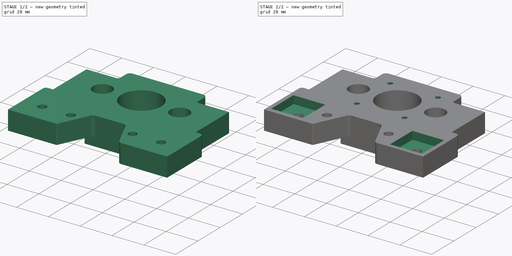
[diagram: build sequence overview — one tinted view per stage of 2, left to right]
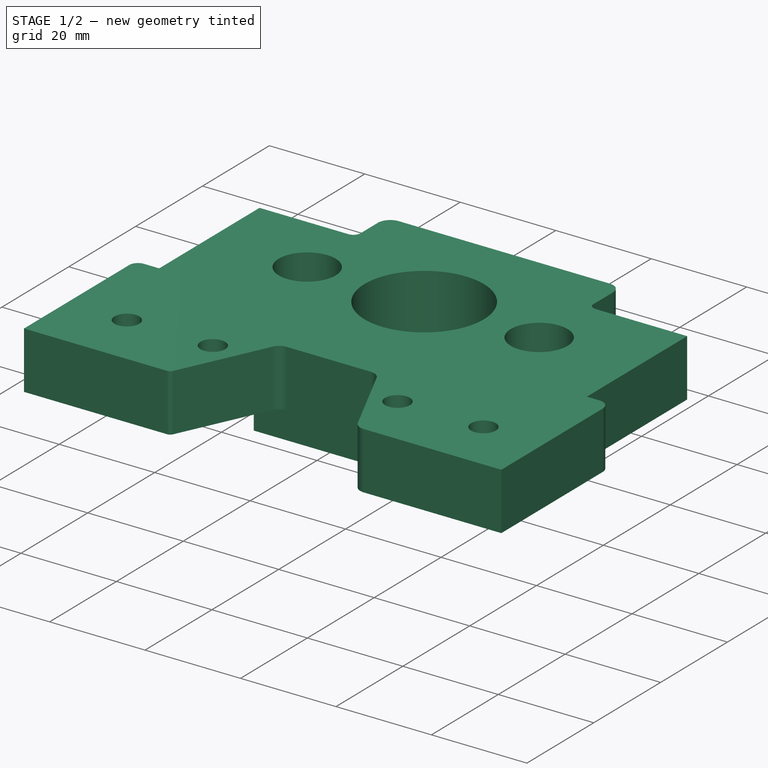
[diagram: stage 1 of 2 — iso view after this stage's code; geometry added in this stage tinted green]
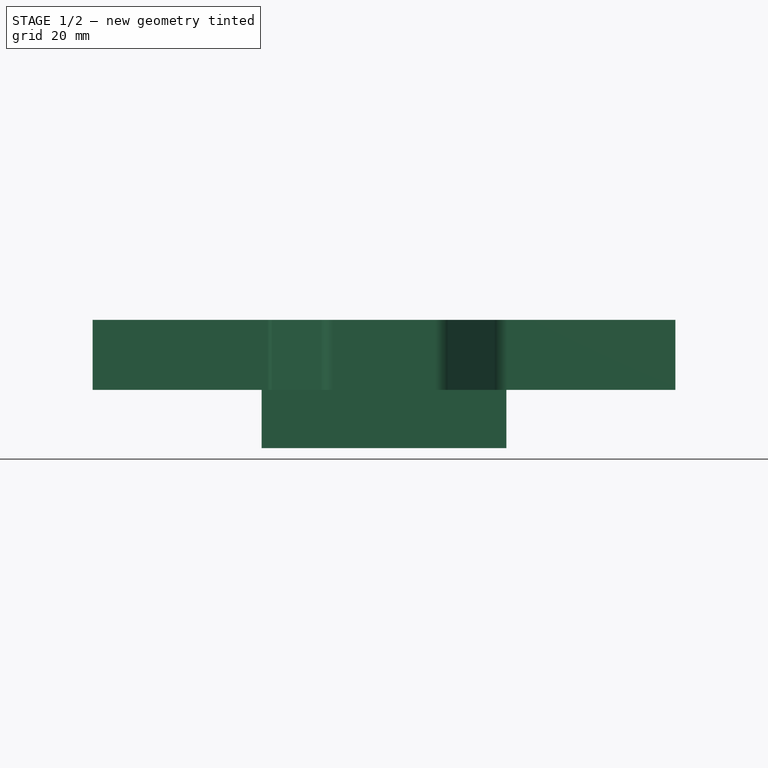
[diagram: stage 1 of 2 — front view after this stage's code; geometry added in this stage tinted green]
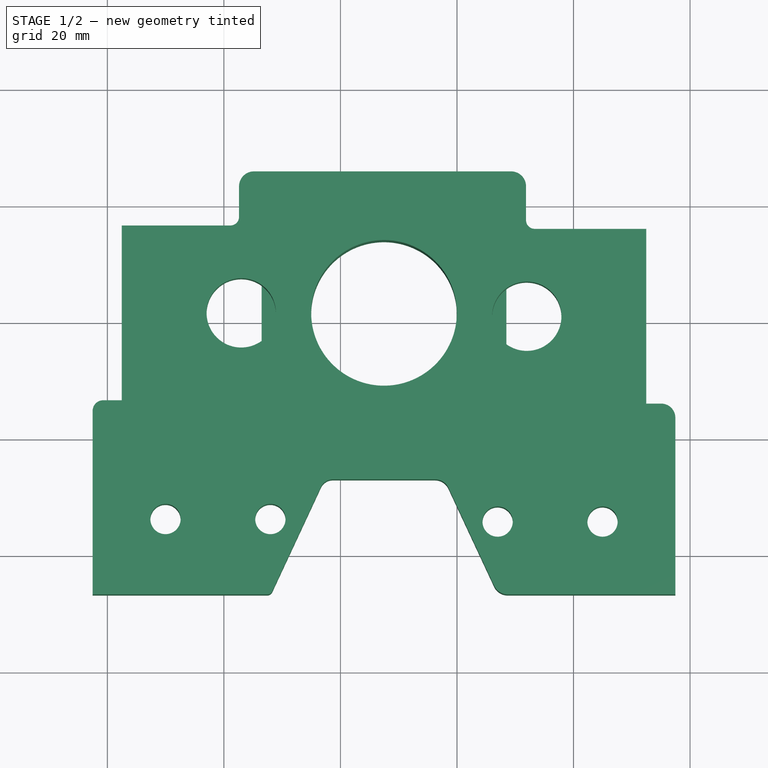
[diagram: stage 1 of 2 — top view after this stage's code; geometry added in this stage tinted green]
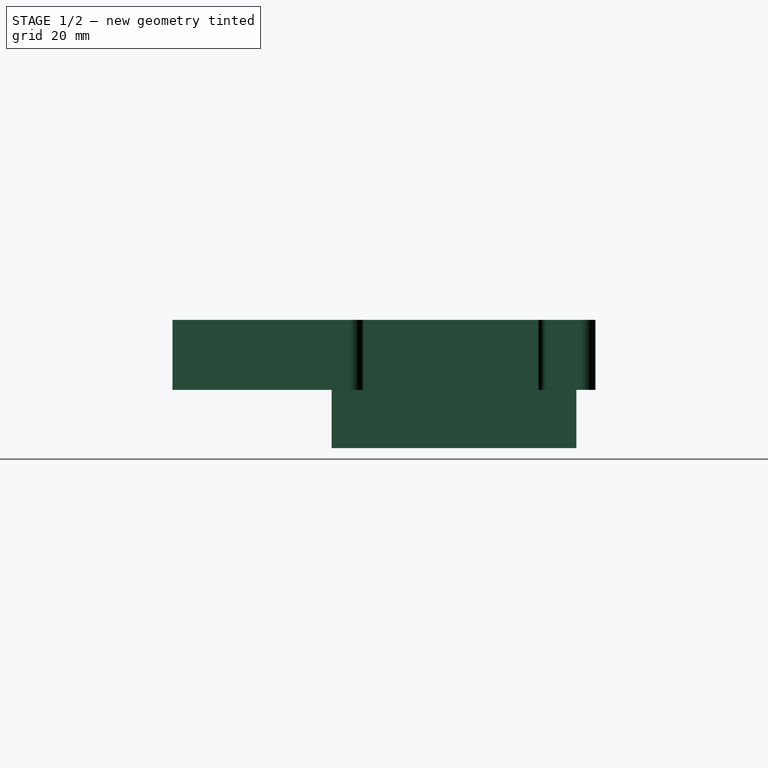
[diagram: stage 1 of 2 — right view after this stage's code; geometry added in this stage tinted green]
FCSTD DOCUMENT  (FreeCAD 0.18R4 (GitTag))
Label: support-y-top-v2
License: All rights reserved
LicenseURL: http://en.wikipedia.org/wiki/All_rights_reserved
objects: Sketcher::SketchObject×4, PartDesign::Pad×2, PartDesign::Pocket×2, PartDesign::Body×1
note: 13 computed .brp shape members not serialized (recipe doc carries the construction recipe); baked Part::Feature solids carry a one-line shape summary decoded from their .brp

FEATURE [Sketcher::SketchObject] Sketch
  MapMode = 5
  Support = -> [XY_Plane]
  sketch-geometry (44):
    g0: LineSegment StartX=32.4759 StartY=55.8285 StartZ=0 EndX=32.4759 EndY=25.8285 EndZ=0
    g1: LineSegment StartX=-57.5241 StartY=26.4057 StartZ=0 EndX=-57.5241 EndY=56.4057 EndZ=0
    g2: LineSegment [constr] StartX=-60.0241 StartY=16.0234 StartZ=0 EndX=-40.0241 EndY=16.0234 EndZ=0
    g3: LineSegment [constr] StartX=-40.0241 StartY=16.0234 StartZ=0 EndX=-40.0241 EndY=-3.97661 EndZ=0
    g4: LineSegment [constr] StartX=-40.0241 StartY=-3.97661 StartZ=0 EndX=-60.0241 EndY=-3.97661 EndZ=0
    g5: LineSegment [constr] StartX=-60.0241 StartY=-3.97661 StartZ=0 EndX=-60.0241 EndY=16.0234 EndZ=0
    g6: LineSegment [constr] StartX=14.9759 StartY=15.5857 StartZ=0 EndX=34.9759 EndY=15.5857 EndZ=0
    g7: LineSegment [constr] StartX=34.9759 StartY=15.5857 StartZ=0 EndX=34.9759 EndY=-4.41435 EndZ=0
    g8: LineSegment [constr] StartX=34.9759 StartY=-4.41435 StartZ=0 EndX=14.9759 EndY=-4.41435 EndZ=0
    g9: LineSegment [constr] StartX=14.9759 StartY=-4.41435 StartZ=0 EndX=14.9759 EndY=15.5857 EndZ=0
    g10: Circle CenterX=-50.0241 CenterY=6.02339 CenterZ=0 NormalX=0 NormalY=0 NormalZ=1 AngleXU=0 Radius=2.6
    g11: Circle CenterX=-32.0241 CenterY=6.02339 CenterZ=0 NormalX=0 NormalY=0 NormalZ=1 AngleXU=0 Radius=2.6
    g12: Circle CenterX=24.9759 CenterY=5.58565 CenterZ=0 NormalX=0 NormalY=0 NormalZ=1 AngleXU=0 Radius=2.6
    g13: Circle CenterX=6.97594 CenterY=5.58565 CenterZ=0 NormalX=0 NormalY=0 NormalZ=1 AngleXU=0 Radius=2.6
    g14: Circle CenterX=-12.5241 CenterY=41.4057 CenterZ=0 NormalX=0 NormalY=0 NormalZ=1 AngleXU=0 Radius=12.5
    g15: Circle CenterX=-37.0241 CenterY=41.4057 CenterZ=0 NormalX=0 NormalY=0 NormalZ=1 AngleXU=0 Radius=5.95
    g16: Circle CenterX=11.9759 CenterY=40.8285 CenterZ=0 NormalX=0 NormalY=0 NormalZ=1 AngleXU=0 Radius=5.95
    g17: LineSegment StartX=37.4759 StartY=23.4011 StartZ=0 EndX=37.4759 EndY=20.9782 EndZ=0
    g18: LineSegment StartX=-62.5241 StartY=17.4077 StartZ=0 EndX=-62.5241 EndY=24.5893 EndZ=0
    g19: LineSegment StartX=-60.7077 StartY=26.4057 StartZ=0 EndX=-57.5241 EndY=26.4057 EndZ=0
    g20: LineSegment StartX=32.4759 StartY=25.8285 StartZ=0 EndX=35.0486 EndY=25.8285 EndZ=0
    g21: LineSegment StartX=-62.5241 StartY=17.4077 StartZ=0 EndX=-62.5241 EndY=-6.91435 EndZ=0
    g22: LineSegment StartX=-62.5241 StartY=-6.91435 StartZ=0 EndX=-32.5241 EndY=-6.91435 EndZ=0
    g23: LineSegment StartX=-31.708 StartY=-6.39444 StartZ=0 EndX=-23.3499 EndY=11.5294 EndZ=0
    g24: LineSegment StartX=-21.3042 StartY=12.8327 StartZ=0 EndX=-3.75749 EndY=12.8327 EndZ=0
    g25: LineSegment StartX=-1.46574 StartY=11.3727 StartZ=0 EndX=6.37027 EndY=-5.43166 EndZ=0
    g26: LineSegment StartX=8.69762 StartY=-6.91435 StartZ=0 EndX=37.4759 EndY=-6.91435 EndZ=0
    g27: LineSegment StartX=37.4759 StartY=-6.91435 StartZ=0 EndX=37.4759 EndY=20.9782 EndZ=0
    g28: LineSegment [constr] StartX=-62.5241 StartY=-6.91435 StartZ=0 EndX=47.6711 EndY=-6.91435 EndZ=0
    g29: ArcOfCircle CenterX=-32.5241 CenterY=-6.01389 CenterZ=0 NormalX=0 NormalY=0 NormalZ=1 AngleXU=0 Radius=0.900454 StartAngle=4.71239 EndAngle=5.84685
    g30: ArcOfCircle CenterX=-21.3042 CenterY=10.5755 CenterZ=0 NormalX=0 NormalY=0 NormalZ=1 AngleXU=0 Radius=2.25724 StartAngle=1.5708 EndAngle=2.70526
    g31: ArcOfCircle CenterX=-3.75749 CenterY=10.304 CenterZ=0 NormalX=0 NormalY=0 NormalZ=1 AngleXU=0 Radius=2.52867 StartAngle=0.436332 EndAngle=1.5708
    g32: ArcOfCircle CenterX=8.69762 CenterY=-4.3464 CenterZ=0 NormalX=0 NormalY=0 NormalZ=1 AngleXU=0 Radius=2.56795 StartAngle=3.57792 EndAngle=4.71239
    g33: ArcOfCircle CenterX=35.0486 CenterY=23.4011 CenterZ=0 NormalX=0 NormalY=0 NormalZ=1 AngleXU=0 Radius=2.42736 StartAngle=0 EndAngle=1.5708
    g34: ArcOfCircle CenterX=-60.7077 CenterY=24.5893 CenterZ=0 NormalX=0 NormalY=0 NormalZ=1 AngleXU=0 Radius=1.81638 StartAngle=1.5708 EndAngle=3.14159
    g35: LineSegment StartX=-57.5241 StartY=56.4057 StartZ=0 EndX=-38.8795 EndY=56.4057 EndZ=0
    g36: LineSegment StartX=-37.4028 StartY=57.8824 StartZ=0 EndX=-37.4028 EndY=63.1204 EndZ=0
    g37: LineSegment StartX=-34.8366 StartY=65.6867 StartZ=0 EndX=9.28637 EndY=65.6867 EndZ=0
    g38: LineSegment StartX=11.8526 StartY=63.1204 StartZ=0 EndX=11.8526 EndY=57.3052 EndZ=0
    g39: LineSegment StartX=13.3293 StartY=55.8285 StartZ=0 EndX=32.4759 EndY=55.8285 EndZ=0
    g40: ArcOfCircle CenterX=-38.8795 CenterY=57.8824 CenterZ=0 NormalX=0 NormalY=0 NormalZ=1 AngleXU=0 Radius=1.47672 StartAngle=4.71239 EndAngle=6.28319
    g41: ArcOfCircle CenterX=13.3293 CenterY=57.3052 CenterZ=0 NormalX=0 NormalY=0 NormalZ=1 AngleXU=0 Radius=1.47672 StartAngle=3.14159 EndAngle=4.71239
    g42: ArcOfCircle CenterX=-34.8366 CenterY=63.1204 CenterZ=0 NormalX=0 NormalY=0 NormalZ=1 AngleXU=0 Radius=2.56621 StartAngle=1.5708 EndAngle=3.14159
    g43: ArcOfCircle CenterX=9.28637 CenterY=63.1204 CenterZ=0 NormalX=0 NormalY=0 NormalZ=1 AngleXU=0 Radius=2.56621 StartAngle=7e-16 EndAngle=1.5708
  constraints (100):
    c: Vertical(g0)
    c: Vertical(g1)
    c: DistanceX(g1,g0) = 90
    c: DistanceY(g0,g0) = 30
    c: Coincident(g2,g3)
    c: Coincident(g3,g4)
    c: Coincident(g4,g5)
    c: Coincident(g5,g2)
    c: Horizontal(g2)
    c: Horizontal(g4)
    c: Vertical(g3)
    c: Vertical(g5)
    c: Coincident(g6,g7)
    c: Coincident(g7,g8)
    c: Coincident(g8,g9)
    c: Coincident(g9,g6)
    c: Horizontal(g6)
    c: Horizontal(g8)
    c: Vertical(g7)
    c: Vertical(g9)
    c: Equal(g2,g3)
    c: Equal(g3,g6)
    c: Equal(g6,g7)
    c: DistanceY(g7,g7) = 20
    c: Equal(g10,g12)
    c: DistanceY(g10,g2) = 10
    c: DistanceY(g12,g6) = 10
    c: DistanceX(g2,g10) = 10
    c: DistanceX(g6,g12) = 10
    c: DistanceX(g2,g11) = 8
    c: Diameter(g10) = 5.2
    c: DistanceY(g11,g10) = 0
    c: DistanceY(g12,g13) = 0
    c: Equal(g13,g10)
    c: DistanceX(g1,g14) = 45
    c: DistanceY(g14,g1) = 15
    c: DistanceY(g15,g1) = 15
    c: DistanceY(g16,g0) = 15
    c: DistanceX(g15,g14) = 24.5
    c: DistanceX(g14,g16) = 24.5
    c: Equal(g15,g16)
    c: Diameter(g15) = 11.9
    c: Diameter(g14) = 25
    c: Vertical(g17)
    c: Vertical(g18)
    c: DistanceX(g18,g17) = 100
    c: Coincident(g19,g1)
    c: Coincident(g20,g0)
    c: Horizontal(g20)
    c: DistanceX(g6,g17) = 2.5
    c: DistanceX(g13,g6) = 8
    c: Coincident(g21,g22)
    c: Coincident(g26,g27)
    c: Coincident(g27,g17)
    c: Vertical(g21)
    c: Vertical(g27)
    c: Horizontal(g26)
    c: Horizontal(g22)
    c: DistanceY(g26,g7) = 2.5
    c: Equal(g22,g1)
    c: Equal(g1,g0)
    c: Horizontal(g24)
    c: Coincident(g21,g18)
    c: Angle(g23,g22) = 2.00713
    c: Angle(g26,g25) = 2.00713
    c: DistanceX(g18,g2) = 2.5
    c: Horizontal(g28)
    c: Tangent(g22,g29) = -1.5708
    c: Tangent(g23,g29) = -1.5708
    c: Tangent(g23,g30) = 1.5708
    c: Tangent(g24,g30) = 1.5708
    c: Tangent(g24,g31) = 1.5708
    c: Tangent(g25,g31) = 1.5708
    c: Tangent(g25,g32) = -1.5708
    c: Tangent(g26,g32) = -1.5708
    c: PointOnObject(g26,g28)
    c: Coincident(g28,g21)
    c: Tangent(g20,g33) = 1.5708
    c: Tangent(g17,g33) = 1.5708
    c: Tangent(g19,g34) = 1.5708
    c: Tangent(g18,g34) = 1.5708
    c: Horizontal(g39)
    c: Horizontal(g35)
    c: Horizontal(g37)
    c: Vertical(g38)
    c: Vertical(g36)
    c: Coincident(g35,g1)
    c: Coincident(g39,g0)
    c: DistanceX(g0,g17) = 5
    c: Horizontal(g19)
    c: Tangent(g36,g40) = -1.5708
    c: Tangent(g35,g40) = -1.5708
    c: Tangent(g39,g41) = -1.5708
    c: Tangent(g38,g41) = -1.5708
    c: Tangent(g36,g42) = 1.5708
    c: Tangent(g37,g42) = 1.5708
    c: Tangent(g38,g43) = 1.5708
    c: Tangent(g37,g43) = 1.5708
    c: Equal(g42,g43)
    c: Equal(g40,g41)
FEATURE [PartDesign::Pad] Pad
  Length = 12
  Length2 = 100
  Profile = -> Sketch
  Type = 0
FEATURE [Sketcher::SketchObject] Sketch001
  ExternalGeometry = -> [Pad]
  MapMode = 5
  Placement = pos=(0,0,0) rot=(1,0,0;3.14159rad)
  Support = -> [Pad]
  sketch-geometry (9):
    g0: LineSegment StartX=8.47594 StartY=-62.4057 StartZ=0 EndX=-33.5241 EndY=-62.4057 EndZ=0
    g1: LineSegment StartX=-33.5241 StartY=-62.4057 StartZ=0 EndX=-33.5241 EndY=-20.4057 EndZ=0
    g2: LineSegment StartX=-33.5241 StartY=-20.4057 StartZ=0 EndX=8.47594 EndY=-20.4057 EndZ=0
    g3: LineSegment StartX=8.47594 StartY=-20.4057 StartZ=0 EndX=8.47594 EndY=-62.4057 EndZ=0
    g4: Circle [constr] CenterX=2.47594 CenterY=-56.4057 CenterZ=0 NormalX=0 NormalY=0 NormalZ=1 AngleXU=0 Radius=1.5
    g5: Circle [constr] CenterX=-27.5241 CenterY=-56.4057 CenterZ=0 NormalX=0 NormalY=0 NormalZ=1 AngleXU=0 Radius=1.5
    g6: Circle [constr] CenterX=-27.5241 CenterY=-26.4057 CenterZ=0 NormalX=0 NormalY=0 NormalZ=1 AngleXU=0 Radius=1.5
    g7: Circle [constr] CenterX=2.47594 CenterY=-26.4057 CenterZ=0 NormalX=0 NormalY=0 NormalZ=1 AngleXU=0 Radius=1.5
    g8: Circle CenterX=-12.5241 CenterY=-41.4057 CenterZ=0 NormalX=0 NormalY=0 NormalZ=1 AngleXU=0 Radius=12.5
  constraints (25):
    c: Coincident(g0,g1)
    c: Coincident(g1,g2)
    c: Coincident(g2,g3)
    c: Coincident(g3,g0)
    c: Horizontal(g0)
    c: Horizontal(g2)
    c: Vertical(g1)
    c: Vertical(g3)
    c: Equal(g0,g1)
    c: DistanceY(g1,g1) = 42
    c: Symmetric(g0,g1,g-3)
    c: Equal(g4,g5)
    c: Equal(g5,g6)
    c: Equal(g6,g7)
    c: DistanceX(g4,g0) = 6
    c: DistanceX(g0,g5) = 6
    c: DistanceX(g1,g6) = 6
    c: DistanceX(g7,g2) = 6
    c: DistanceY(g0,g4) = 6
    c: DistanceY(g0,g5) = 6
    c: DistanceY(g6,g1) = 6
    c: DistanceY(g7,g2) = 6
    c: Diameter(g4) = 3
    c: Coincident(g8,g-3)
    c: Equal(g8,g-3)
FEATURE [PartDesign::Pad] Pad001
  BaseFeature = -> Pad
  Length = 10
  Length2 = 100
  Profile = -> Sketch001
  Type = 0
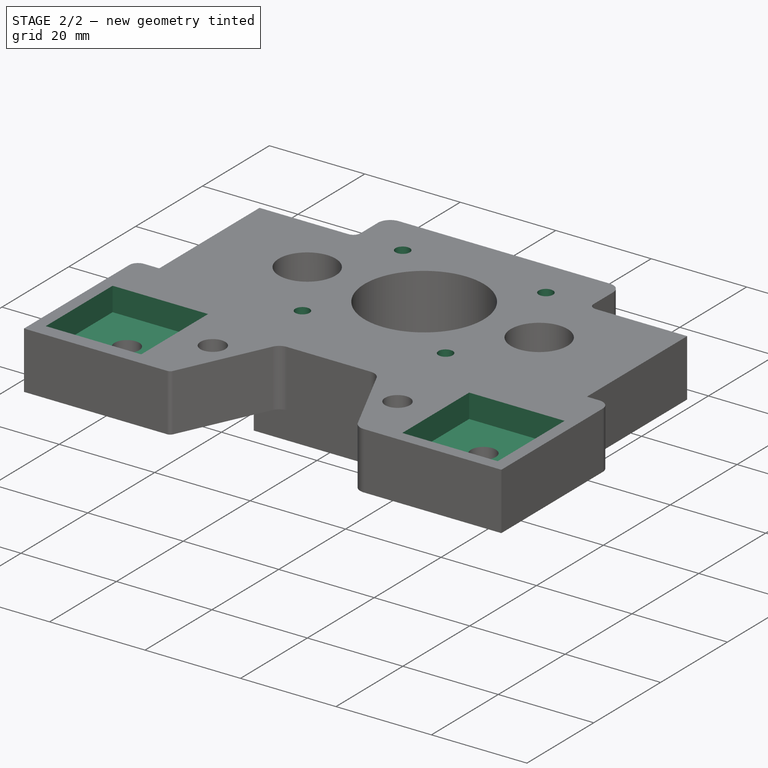
[diagram: stage 2 of 2 — iso view after this stage's code; geometry added in this stage tinted green]
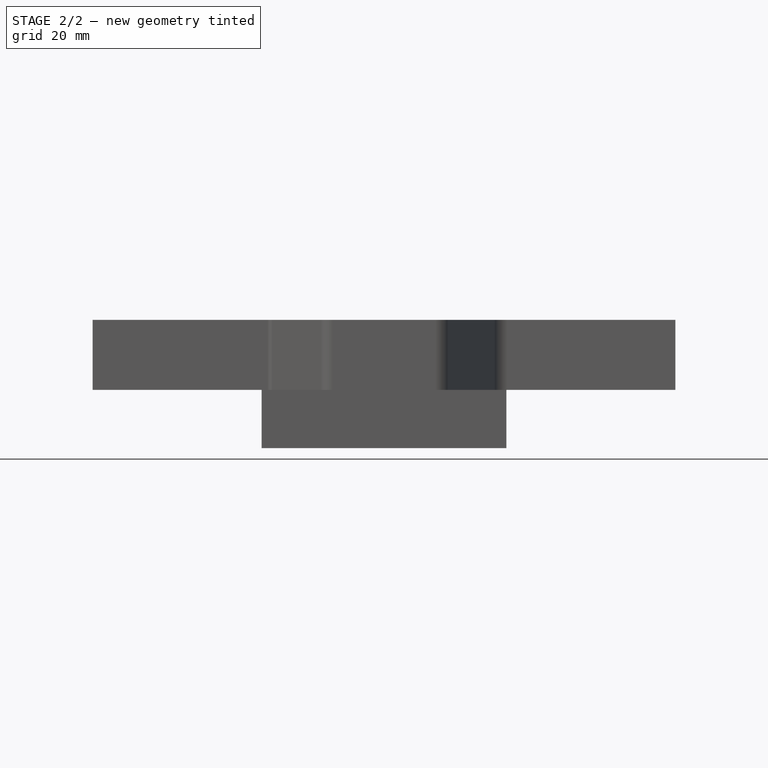
[diagram: stage 2 of 2 — front view after this stage's code; geometry added in this stage tinted green]
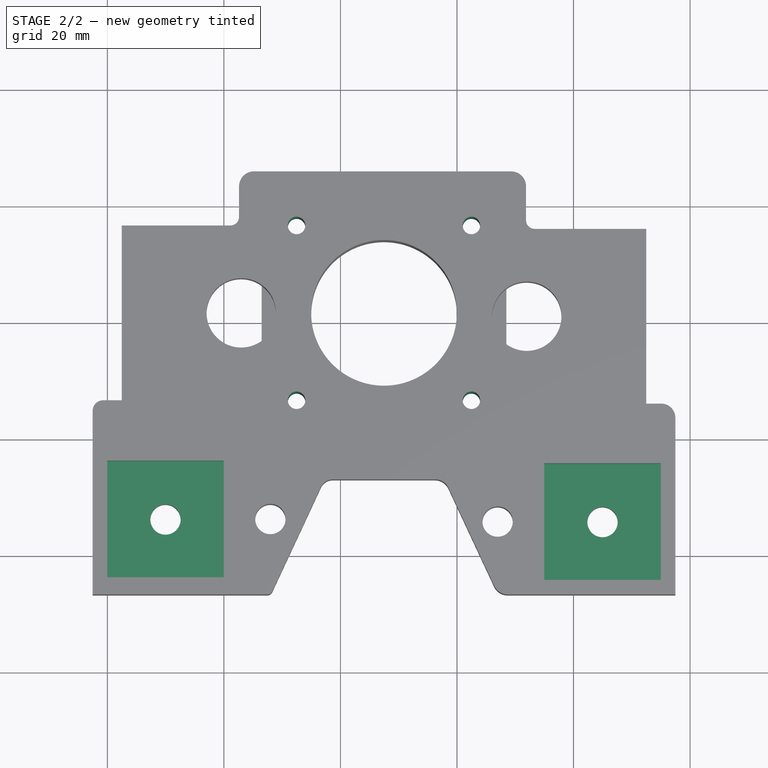
[diagram: stage 2 of 2 — top view after this stage's code; geometry added in this stage tinted green]
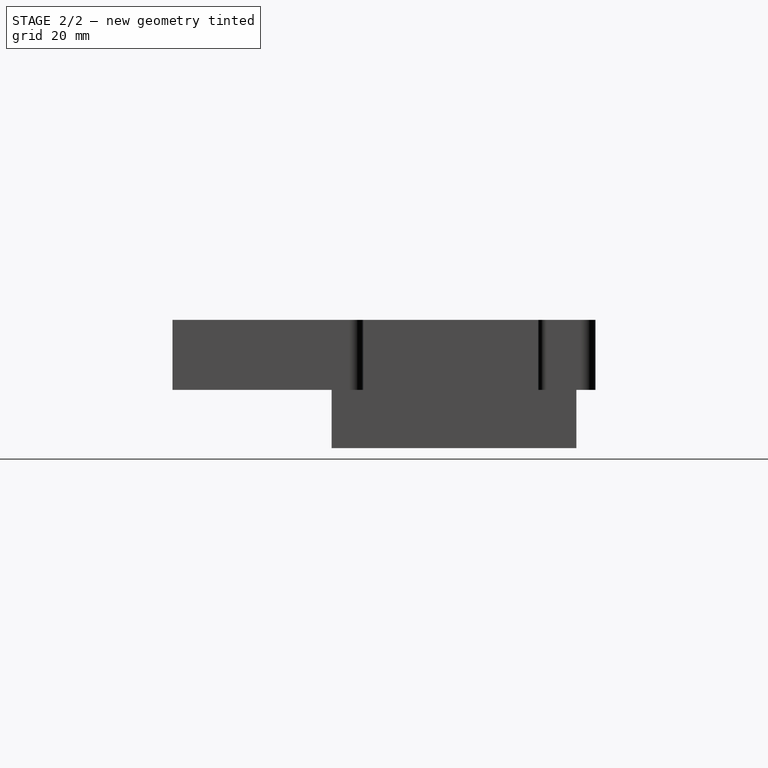
[diagram: stage 2 of 2 — right view after this stage's code; geometry added in this stage tinted green]
FEATURE [Sketcher::SketchObject] Sketch002
  ExternalGeometry = -> [Pad001]
  MapMode = 5
  Placement = pos=(0,0,-10) rot=(1,0,0;3.14159rad)
  Support = -> [Pad001]
  sketch-geometry (4):
    g0: Circle CenterX=-27.5241 CenterY=-26.4057 CenterZ=0 NormalX=0 NormalY=0 NormalZ=1 AngleXU=0 Radius=1.5
    g1: Circle CenterX=2.47594 CenterY=-26.4057 CenterZ=0 NormalX=0 NormalY=0 NormalZ=1 AngleXU=0 Radius=1.5
    g2: Circle CenterX=2.47594 CenterY=-56.4057 CenterZ=0 NormalX=0 NormalY=0 NormalZ=1 AngleXU=0 Radius=1.5
    g3: Circle CenterX=-27.5241 CenterY=-56.4057 CenterZ=0 NormalX=0 NormalY=0 NormalZ=1 AngleXU=0 Radius=1.5
  constraints (12):
    c: Equal(g0,g1)
    c: Equal(g1,g2)
    c: Equal(g2,g3)
    c: DistanceY(g0,g-4) = 6
    c: DistanceY(g1,g-5) = 6
    c: DistanceY(g-6,g2) = 6
    c: DistanceY(g-6,g3) = 6
    c: DistanceX(g-4,g0) = 6
    c: DistanceX(g1,g-5) = 6
    c: DistanceX(g2,g-6) = 6
    c: DistanceX(g-6,g3) = 6
    c: Diameter(g1) = 3
FEATURE [PartDesign::Pocket] Pocket
  BaseFeature = -> Pad001
  Length = 35
  Length2 = 100
  Profile = -> Sketch002
  Type = 0
FEATURE [Sketcher::SketchObject] Sketch003
  ExternalGeometry = -> [Pocket]
  MapMode = 5
  Placement = pos=(0,0,12) rot=(0,0,1;0rad)
  Support = -> [Pocket]
  sketch-geometry (8):
    g0: LineSegment StartX=-60.0241 StartY=16.0234 StartZ=0 EndX=-40.0241 EndY=16.0234 EndZ=0
    g1: LineSegment StartX=-40.0241 StartY=16.0234 StartZ=0 EndX=-40.0241 EndY=-3.97661 EndZ=0
    g2: LineSegment StartX=-40.0241 StartY=-3.97661 StartZ=0 EndX=-60.0241 EndY=-3.97661 EndZ=0
    g3: LineSegment StartX=-60.0241 StartY=-3.97661 StartZ=0 EndX=-60.0241 EndY=16.0234 EndZ=0
    g4: LineSegment StartX=14.9759 StartY=15.5857 StartZ=0 EndX=34.9759 EndY=15.5857 EndZ=0
    g5: LineSegment StartX=34.9759 StartY=15.5857 StartZ=0 EndX=34.9759 EndY=-4.41435 EndZ=0
    g6: LineSegment StartX=34.9759 StartY=-4.41435 StartZ=0 EndX=14.9759 EndY=-4.41435 EndZ=0
    g7: LineSegment StartX=14.9759 StartY=-4.41435 StartZ=0 EndX=14.9759 EndY=15.5857 EndZ=0
  constraints (22):
    c: Coincident(g0,g1)
    c: Coincident(g1,g2)
    c: Coincident(g2,g3)
    c: Coincident(g3,g0)
    c: Horizontal(g0)
    c: Horizontal(g2)
    c: Vertical(g1)
    c: Vertical(g3)
    c: Coincident(g4,g5)
    c: Coincident(g5,g6)
    c: Coincident(g6,g7)
    c: Coincident(g7,g4)
    c: Horizontal(g4)
    c: Horizontal(g6)
    c: Vertical(g5)
    c: Vertical(g7)
    c: Equal(g0,g1)
    c: Equal(g1,g4)
    c: Equal(g4,g5)
    c: DistanceY(g1,g1) = 20
    c: Symmetric(g0,g1,g-3)
    c: Symmetric(g4,g5,g-4)
FEATURE [PartDesign::Pocket] Pocket001
  BaseFeature = -> Pocket
  Length = 5
  Length2 = 100
  Profile = -> Sketch003
  Type = 0
FEATURE [PartDesign::Body] Body
  Group = -> [Sketch,Pad,Sketch001,Pad001,Sketch002,Pocket,Sketch003,Pocket001]
  Origin = -> Origin
  Tip = -> Pocket001
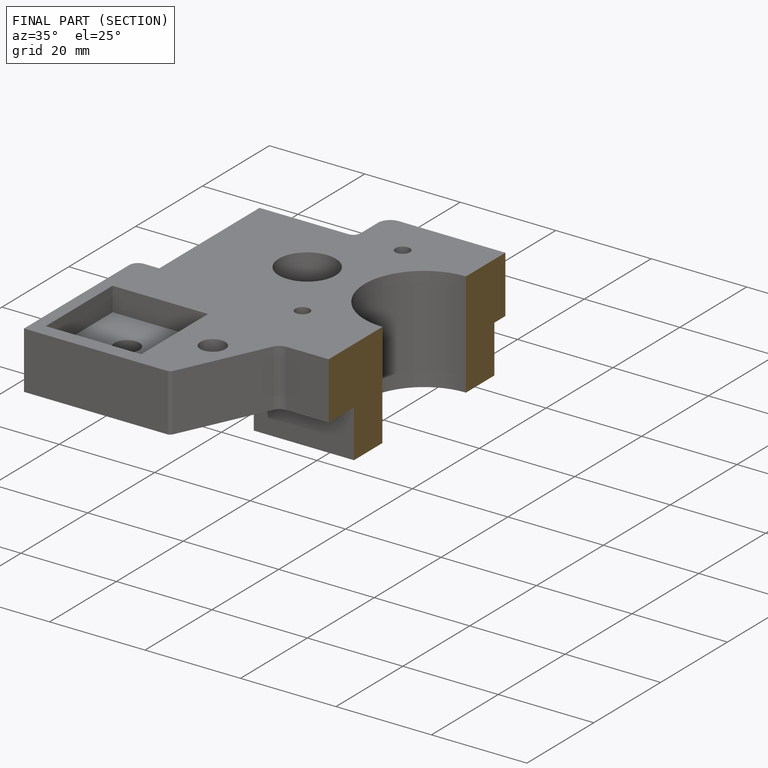
[diagram: finished part — half-section view (interior)]
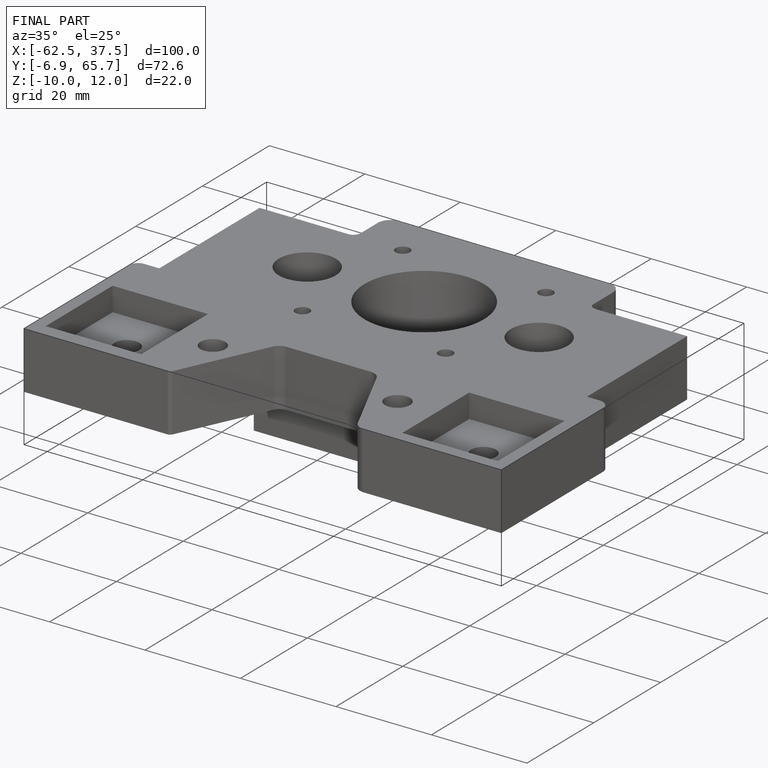
[diagram: finished part — iso view with bounding-box wireframe]
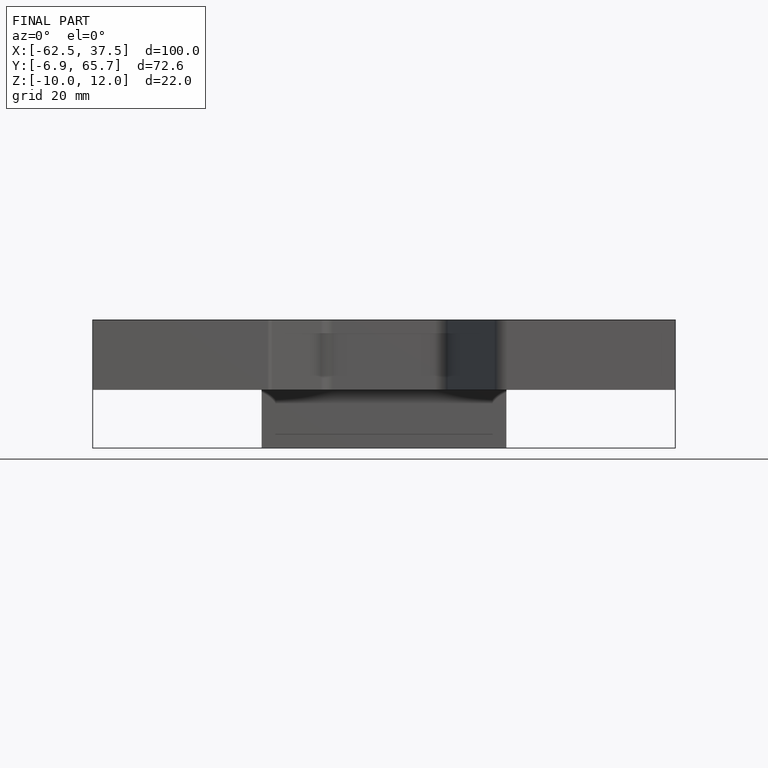
[diagram: finished part — front view with bounding-box wireframe]
